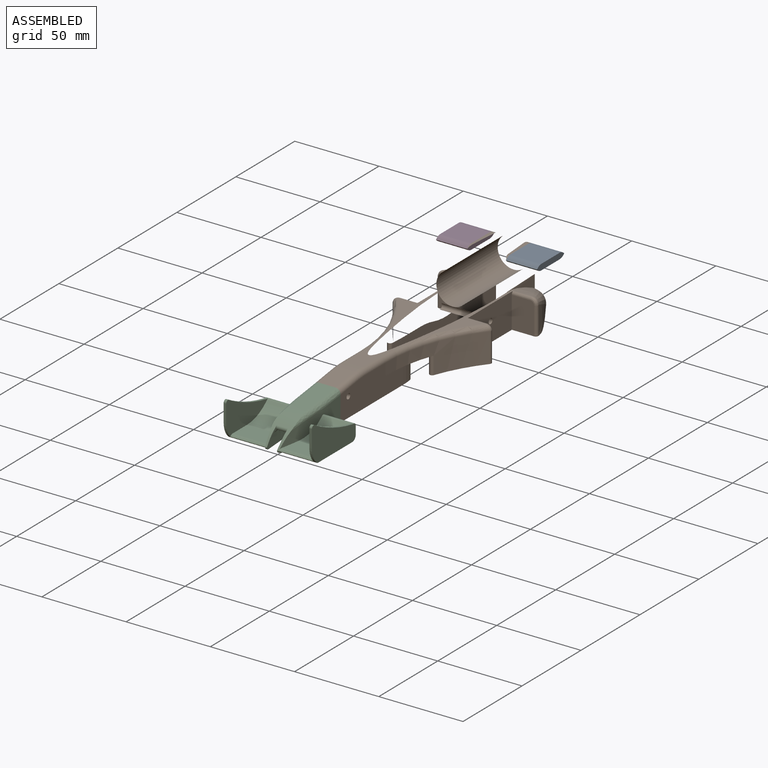
[diagram: assembled view]
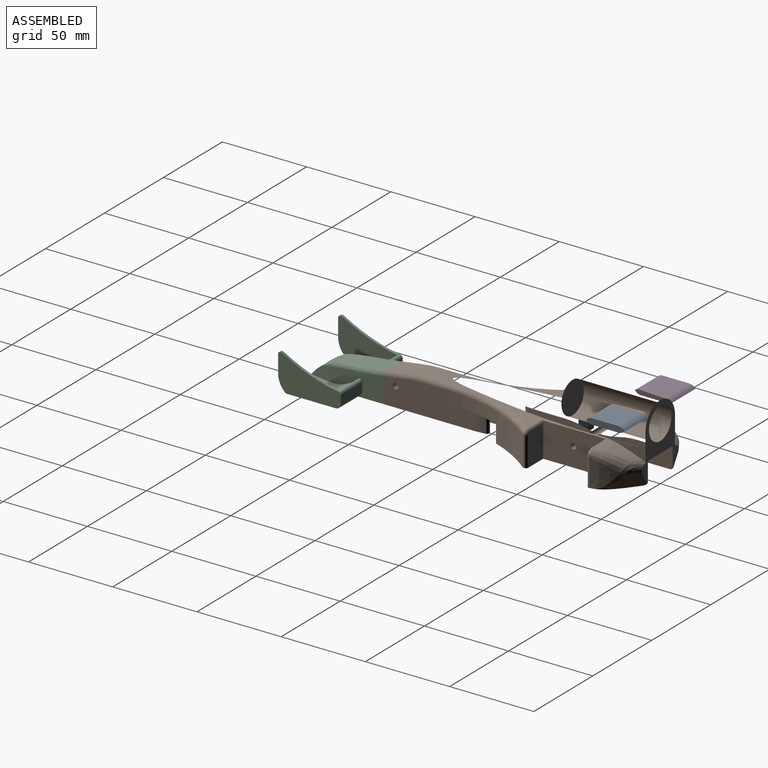
[diagram: assembled view, second angle]
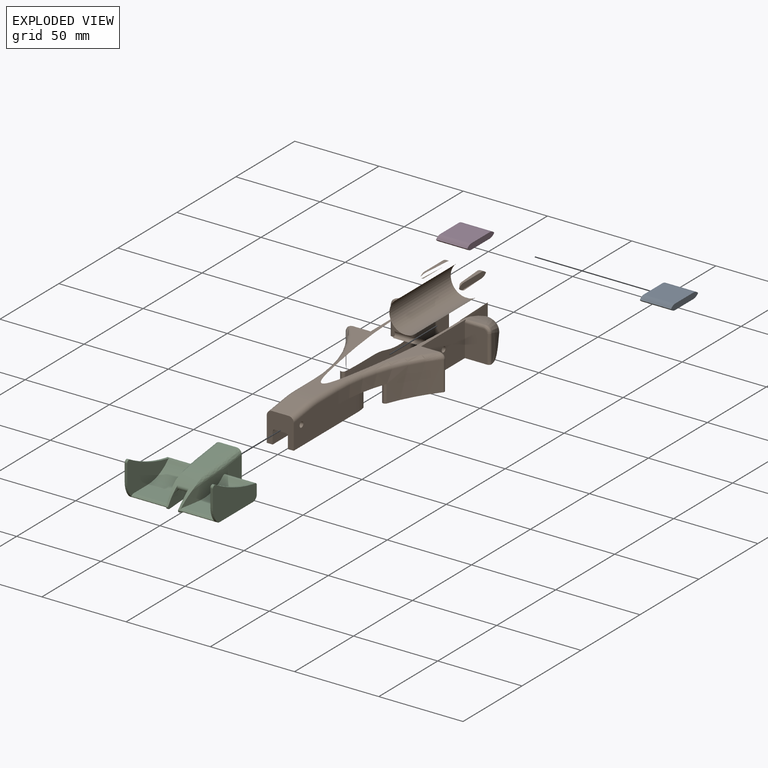
[diagram: exploded view]
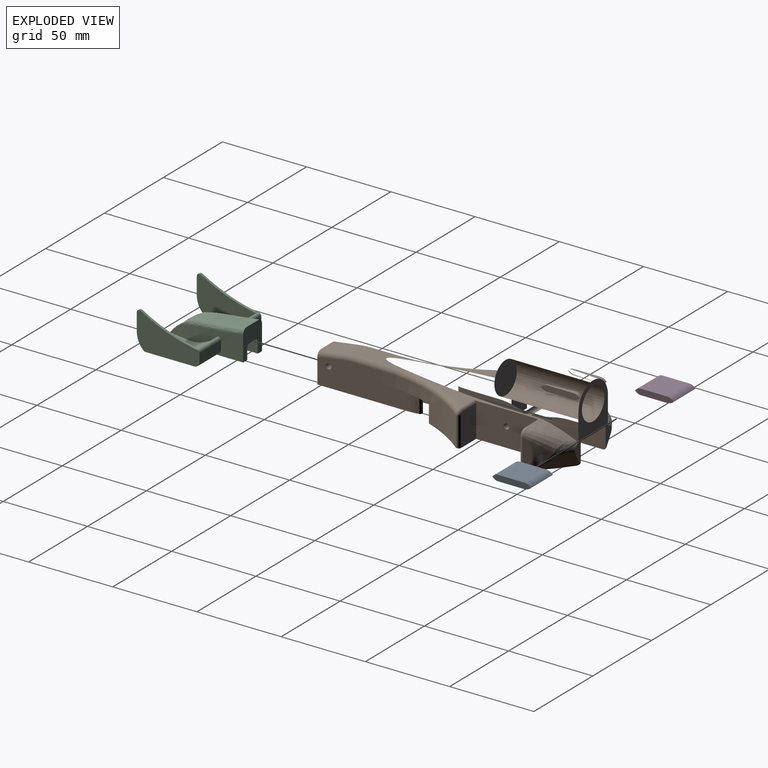
[diagram: exploded view, second angle]
ASSEMBLY  parts=4 mates=3
PART A: 12 faces, bbox 18.5x23x3.5 mm
  f0: plane 23x3.5mm, normal (-1,0,0), area 72.4mm2, adj f1,f2,f3,f4,f5,f6,f7,f9
  f1: plane 18.51x15.55mm, normal (0,0,1), area 287.8mm2, adj f0,f5,f6,f8
  f2: plane 18.51x0.18mm, normal (0,0.71,-0.71), area 4.6mm2, adj f0,f3,f4,f8
  f3: plane 18.51x0.18mm, normal (0,0.71,0.71), area 4.6mm2, adj f0,f2,f5,f8
  f4: cylinder r=5.37mm len=18.51mm, axis (1,0,0), area 78.1mm2, adj f0,f2,f8,f9
  f5: cylinder r=5.37mm len=18.51mm, axis (1,0,0), area 78.1mm2, adj f0,f1,f3,f8
  f6: cylinder r=4.16mm len=18.51mm, axis (1,0,0), area 60.5mm2, adj f0,f1,f7,f8
  f7: plane 18.51x0.53mm, normal (0,-0.71,0.71), area 13.9mm2, adj f0,f6,f8,f11
  f8: plane 23x3.5mm, normal (1,0,0), area 72.4mm2, adj f1,f2,f3,f4,f5,f6,f7,f9
  f9: plane 18.51x15.55mm, normal (0,0,-1), area 287.8mm2, adj f0,f4,f8,f10
  f10: cylinder r=4.16mm len=18.51mm, axis (1,0,0), area 60.5mm2, adj f0,f8,f9,f11
  f11: plane 18.51x0.53mm, normal (0,-0.71,-0.71), area 13.9mm2, adj f0,f7,f8,f10
PART B: 143 faces, bbox 63.7x165.4x54 mm
  f0: plane 15.65x0.98mm, normal (0,0,1), area 7.3mm2, adj f4,f137,f142
  f1: plane 0.25x0.15mm, normal (0,1,0), area 0mm2, adj f4,f136,f140
  f2: plane 15.65x0.98mm, normal (0,0,1), area 7.3mm2, adj f4,f136,f139
  f3: plane 15.55x2.44mm, normal (0,0,1), area 27.8mm2, adj f4,f5,f9,f136
  f4: bspline ~135x31.11mm, area 5379.5mm2, adj f0,f1,f2,f3,f5,f6,f7,f8
  f5: cylinder r=5.37mm len=3.8mm, axis (-1,0,0), area 8.1mm2, adj f3,f4,f6,f136
  f6: plane 1.43x0.18mm, normal (0,0.71,0.71), area 0.3mm2, adj f4,f5,f7,f136
  f7: plane 1.31x0.18mm, normal (0,0.71,-0.71), area 0.3mm2, adj f4,f6,f8,f136
  f8: cylinder r=5.37mm len=3.8mm, axis (-1,0,0), area 2.5mm2, adj f4,f7,f136
  f9: cylinder r=4.16mm len=2.94mm, axis (-1,0,0), area 2.8mm2, adj f3,f4,f10,f136
  f10: plane 0.3x0.3mm, normal (0,-0.71,0.71), area 0mm2, adj f4,f9,f136
  f11: plane 59.56x10.65mm, normal (-1,0,0), area 507mm2, adj f21,f23,f111,f113,f114,f118,f135
  f12: plane 60.92x3.5mm, normal (0,0,-1), area 210.5mm2, adj f17,f22,f109,f110,f135
  f13: bspline ~10x0.91mm, area 9.2mm2, adj f19,f20,f51,f135
  f14: cylinder r=41.85mm len=21.2mm, axis (-1,0,0), area 127mm2, adj f15,f16,f37,f59,f60,f135
  f15: torus R=43.85mm, axis (1,0,0), area 20.2mm2, adj f14,f23,f60,f135
  f16: torus R=43.85mm, axis (-1,0,0), area 20.2mm2, adj f14,f24,f37,f135
  f17: plane 53.42x17.5mm, normal (-1,0,0), area 795.2mm2, adj f12,f20,f36,f38,f40,f73,f74,f75
  f18: plane 53.42x17.5mm, normal (1,0,0), area 795.2mm2, adj f19,f21,f36,f39,f40,f69,f70,f71
  f19: bspline ~3.16x3mm, area 5.3mm2, adj f13,f18,f71,f135
  f20: bspline ~3.16x3mm, area 5.3mm2, adj f13,f17,f75,f135
  f21: plane 60.92x3.5mm, normal (0,0,-1), area 210.5mm2, adj f11,f18,f111,f112,f135
  f22: plane 59.55x10.64mm, normal (1,0,0), area 507.1mm2, adj f12,f24,f109,f115,f116,f117,f135
  f23: torus R=42.98mm, axis (1,0,0), area 20.4mm2, adj f11,f15,f114,f135
  f24: torus R=42.98mm, axis (1,0,0), area 20.4mm2, adj f16,f22,f116,f135
  f25: plane 110.83x51.52mm, normal (0,0,1), area 616.1mm2, adj f4,f41,f43,f52,f54,f55,f68,f69
  f26: plane 89.03x21.28mm, normal (0,0,-1), area 751mm2, adj f27,f31,f32,f38,f41,f82,f88,f98
  f27: plane 75.6x13.33mm, normal (1,0,0), area 745mm2, adj f26,f33,f40,f58,f61,f62,f63,f105
  f28: plane 75.6x13.33mm, normal (-1,0,0), area 745mm2, adj f29,f33,f40,f53,f58,f61,f62,f63
  f29: plane 87.91x20.17mm, normal (0,0,-1), area 751mm2, adj f28,f30,f39,f43,f77,f83,f85,f100
  f30: bspline ~18.38x16.51mm, area 135.8mm2, adj f29,f33,f123,f127,f128,f129,f130
  f31: bspline ~18.38x16.51mm, area 133.2mm2, adj f26,f33,f122,f131,f132,f133
  f32: plane 18.87x13.21mm, normal (0,-1,0), area 247.2mm2, adj f26,f41,f80,f81,f121
  f33: plane 40.05x31.43mm, normal (0,1,0), area 435.5mm2, adj f4,f27,f28,f30,f31,f49,f50,f64
  f34: extruded ~16.96x2.19mm, area 39.9mm2, adj f37,f40,f115,f117
  f35: extruded ~16.96x2.19mm, area 39.9mm2, adj f40,f60,f113,f118
  f36: cylinder r=1.6mm len=16mm, axis (-1,0,0), area 160.8mm2, adj f17,f18
  f37: bspline ~3.98x2.83mm, area 3.9mm2, adj f14,f16,f34,f59,f116
  f38: cylinder r=92.82mm len=58.55mm, axis (0,0,1), area 759.9mm2, adj f17,f26,f40,f72,f88,f104
  f39: cylinder r=92.82mm len=58.55mm, axis (0,0,1), area 759.9mm2, adj f18,f29,f40,f68,f85,f108
  f40: plane 72.64x27.77mm, normal (0,0,-1), area 992.5mm2, adj f17,f18,f27,f28,f34,f35,f38,f39
  f41: plane 37.51x20.5mm, normal (-1,0,0), area 727.9mm2, adj f25,f26,f32,f42,f54,f80,f82,f84
  f42: plane 3.21x1.55mm, normal (-1,0,0), area 3mm2, adj f41,f54,f80
  f43: plane 37.51x20.5mm, normal (1,0,0), area 727.9mm2, adj f25,f29,f55,f76,f77,f78,f83,f84
  f44: bspline ~25x15mm, area 90.4mm2, adj f48,f54,f80
  f45: bspline ~25x20mm, area 145.7mm2, adj f47,f79,f100,f130
  f46: bspline ~25x15mm, area 90.3mm2, adj f47,f55,f78
  f47: bspline ~26.4x18.09mm, area 156.5mm2, adj f45,f46,f56,f78,f129
  f48: bspline ~19.24x14.69mm, area 156.5mm2, adj f44,f57,f80,f119,f132
  f49: extruded ~25x7.89mm, area 9.1mm2, adj f33,f55,f64,f127
  f50: extruded ~25x7.89mm, area 9mm2, adj f33,f54,f65,f131
  f51: plane 12.97x10mm, normal (0,-0.14,0.99), area 131mm2, adj f13,f52,f71,f75
  f52: cylinder r=60mm len=10mm, axis (1,0,0), area 85.1mm2, adj f25,f51,f70,f74
  f53: cylinder r=30mm len=10mm, axis (0,0,-1), area 0.4mm2, adj f28,f40,f102,f107
  f54: extruded ~23.09x6.64mm, area 43.4mm2, adj f25,f41,f42,f44,f50,f57,f131
  f55: extruded ~23.05x6.62mm, area 43.5mm2, adj f25,f43,f46,f49,f56,f76,f127
  f56: bspline ~9.3x9.24mm, area 0.2mm2, adj f47,f55,f128
  f57: bspline ~9.3x9.24mm, area 0.2mm2, adj f48,f54,f131
  f58: plane 21x9.46mm, normal (0,0,-1), area 198.7mm2, adj f27,f28,f62,f125
  f59: cylinder r=2mm len=4.02mm, axis (-1,0,0), area 2.9mm2, adj f14,f37,f40,f60
  f60: bspline ~2.99x2.8mm, area 3.9mm2, adj f14,f15,f35,f59,f114
  f61: cylinder r=41.85mm len=21.53mm, axis (-1,0,0), area 457.4mm2, adj f27,f28,f62,f63
  f62: cylinder r=40mm len=21mm, axis (-1,0,0), area 218.6mm2, adj f27,f28,f58,f61
  f63: cylinder r=40mm len=21mm, axis (-1,0,0), area 218.6mm2, adj f27,f28,f40,f61
  f64: extruded ~25x7.66mm, area 62.8mm2, adj f4,f33,f49
  f65: extruded ~25x7.66mm, area 62.8mm2, adj f4,f33,f50,f134
  f66: cylinder r=9.5mm len=52mm, axis (0,1,0), area 3103.9mm2, adj f33,f67
  f67: plane 19x19mm, normal (0,1,0), area 283.5mm2, adj f66
  f68: torus R=95.82mm, axis (0,0,1), area 299.3mm2, adj f25,f39,f69,f86
  f69: cylinder r=3mm len=15.74mm, axis (0,1,0), area 74.2mm2, adj f18,f25,f68,f70
  f70: torus R=57mm, axis (-1,0,0), area 39.4mm2, adj f18,f52,f69,f71
  f71: cylinder r=3mm len=13.4mm, axis (0,0.99,0.14), area 61.8mm2, adj f18,f19,f51,f70
  f72: torus R=95.82mm, axis (0,0,1), area 299.3mm2, adj f25,f38,f73,f89
  f73: cylinder r=3mm len=15.74mm, axis (0,-1,0), area 74.2mm2, adj f17,f25,f72,f74
  f74: torus R=57mm, axis (-1,0,0), area 39.4mm2, adj f17,f52,f73,f75
  f75: cylinder r=3mm len=13.4mm, axis (0,-0.99,-0.14), area 61.7mm2, adj f17,f20,f51,f74
  f76: plane 3.22x1.56mm, normal (1,0,0), area 3mm2, adj f43,f55,f78
  f77: plane 18.87x13.21mm, normal (0,-1,0), area 247.2mm2, adj f29,f43,f78,f79,f101
  f78: bspline ~18.2x4.17mm, area 38.8mm2, adj f43,f46,f47,f76,f77,f79
  f79: bspline ~26.23x1.77mm, area 41.7mm2, adj f45,f77,f78,f101
  f80: bspline ~19.2x4.15mm, area 39.3mm2, adj f32,f41,f42,f44,f48,f81
  f81: bspline ~27.22x1.77mm, area 41.7mm2, adj f32,f80,f98,f99,f119,f121
  f82: plane 19x12.64mm, normal (0,1,0), area 239.5mm2, adj f26,f41,f88,f89,f90
  f83: plane 19x12.64mm, normal (0,1,0), area 239.5mm2, adj f29,f43,f85,f86,f87
  f84: cylinder r=1.6mm len=30mm, axis (1,0,0), area 301.6mm2, adj f41,f43
  f85: cylinder r=1.5mm len=17.5mm, axis (0,0,1), area 59.2mm2, adj f29,f39,f83,f86
  f86: bspline ~5.26x3.92mm, area 13.1mm2, adj f68,f83,f85,f87
  f87: cylinder r=1.5mm len=10.71mm, axis (1,0,0), area 25.2mm2, adj f25,f43,f83,f86
  f88: cylinder r=1.5mm len=17.5mm, axis (0,0,1), area 59.2mm2, adj f26,f38,f82,f89
  f89: bspline ~5.26x3.92mm, area 13.1mm2, adj f72,f82,f88,f90
  f90: cylinder r=1.5mm len=10.71mm, axis (1,0,0), area 25.2mm2, adj f25,f41,f82,f89
  f91: plane 1.31x0.18mm, normal (0,0.71,-0.71), area 0.3mm2, adj f4,f92,f93,f137
  f92: plane 1.43x0.18mm, normal (0,0.71,0.71), area 0.3mm2, adj f4,f91,f95,f137
  f93: cylinder r=5.37mm len=3.8mm, axis (1,0,0), area 2.5mm2, adj f4,f91,f137
  f94: plane 15.55x2.44mm, normal (0,0,1), area 27.8mm2, adj f4,f95,f96,f137
  f95: cylinder r=5.37mm len=3.8mm, axis (1,0,0), area 8.1mm2, adj f4,f92,f94,f137
  f96: cylinder r=4.16mm len=2.94mm, axis (1,0,0), area 2.8mm2, adj f4,f94,f97,f137
  f97: plane 0.3x0.3mm, normal (0,-0.71,0.71), area 0mm2, adj f4,f96,f137
  f98: cylinder r=1.5mm len=0.5mm, axis (0,0,1), area 0.2mm2, adj f26,f81,f99,f121
  f99: extruded ~0.5x0.04mm, area 0mm2, adj f26,f81,f98,f120
  f100: extruded ~4.69x1.19mm, area 2.1mm2, adj f29,f45,f101,f130
  f101: extruded ~1.74x1.5mm, area 1.3mm2, adj f29,f77,f79,f100
  f102: extruded ~0.5x0.04mm, area 0mm2, adj f28,f29,f53,f107
  f103: cylinder r=136.18mm len=11.45mm, axis (0,0,-1), area 120.4mm2, adj f26,f40,f104,f105,f106
  f104: cylinder r=1.5mm len=10.5mm, axis (0,0,-1), area 42.5mm2, adj f26,f38,f40,f103
  f105: extruded ~0.5x0.04mm, area 0mm2, adj f26,f27,f103,f106
  f106: cylinder r=30mm len=10mm, axis (0,0,-1), area 0.4mm2, adj f27,f40,f103,f105
  f107: cylinder r=136.18mm len=11.45mm, axis (0,0,-1), area 120.4mm2, adj f29,f40,f53,f102,f108
  f108: cylinder r=1.5mm len=10.5mm, axis (0,0,-1), area 42.5mm2, adj f29,f39,f40,f107
  f109: cylinder r=1.5mm len=10.5mm, axis (0,0,-1), area 46.9mm2, adj f12,f22,f40,f110
  f110: cylinder r=37.75mm len=10.5mm, axis (0,0,-1), area 65.9mm2, adj f12,f17,f40,f109
  f111: cylinder r=1.5mm len=10.5mm, axis (0,0,-1), area 46.9mm2, adj f11,f21,f40,f112
  f112: cylinder r=37.75mm len=10.5mm, axis (0,0,-1), area 65.9mm2, adj f18,f21,f40,f111
  f113: cylinder r=1mm len=16.96mm, axis (0,-1,0), area 13.5mm2, adj f11,f35,f114,f118
  f114: bspline ~1.97x1.13mm, area 1.8mm2, adj f11,f23,f60,f113
  f115: cylinder r=1mm len=16.96mm, axis (0,-1,0), area 13.5mm2, adj f22,f34,f116,f117
  f116: bspline ~1.97x1.13mm, area 1.8mm2, adj f22,f24,f37,f115
  f117: bspline ~21.32x2.49mm, area 42.7mm2, adj f22,f34,f40,f115
  f118: bspline ~21.32x2.49mm, area 42.7mm2, adj f11,f35,f40,f113
  f119: bspline ~25x20mm, area 145.7mm2, adj f48,f81,f120,f133
  f120: extruded ~4.69x1.19mm, area 2.1mm2, adj f26,f99,f119,f133
  f121: extruded ~1.48x1.26mm, area 1.1mm2, adj f26,f32,f81,f98
  f122: cylinder r=1.5mm len=2.04mm, axis (-1,0,0), area 2.5mm2, adj f26,f27,f31,f33
  f123: cylinder r=1.5mm len=2.04mm, axis (-1,0,0), area 2.5mm2, adj f28,f29,f30,f33
  f124: plane 21x7.25mm, normal (0,0.2,-0.98), area 155.4mm2, adj f27,f28,f125,f126
  f125: cylinder r=20mm len=21mm, axis (1,0,0), area 82.9mm2, adj f27,f28,f58,f124
  f126: cylinder r=1mm len=21mm, axis (-1,0,0), area 28.8mm2, adj f27,f28,f33,f124
  f127: bspline ~12.71x9.9mm, area 20.2mm2, adj f30,f33,f49,f55,f128
  f128: bspline ~6.31x4.05mm, area 6.6mm2, adj f30,f56,f127,f129
  f129: bspline ~9.22x7.11mm, area 39.1mm2, adj f30,f47,f128,f130
  f130: bspline ~11.98x9.94mm, area 24.5mm2, adj f29,f30,f45,f100,f129
  f131: bspline ~7.15x6.59mm, area 26.8mm2, adj f31,f33,f50,f54,f57,f132
  f132: bspline ~8.55x6.7mm, area 39.1mm2, adj f31,f48,f131,f133
  f133: bspline ~11.98x9.94mm, area 24.5mm2, adj f26,f31,f119,f120,f132
  f134: bspline ~135x15.55mm, area 1.6mm2, adj f4,f25,f65
  f135: plane 18.11x16.19mm, normal (0,-1,0), area 209mm2, adj f11,f12,f13,f14,f15,f16,f17,f18
  f136: plane 23x3.5mm, normal (-1,0,0), area 72.4mm2, adj f1,f2,f3,f4,f5,f6,f7,f8
  f137: plane 23x3.5mm, normal (1,0,0), area 72.4mm2, adj f0,f4,f91,f92,f93,f94,f95,f96
  f138: plane 0.25x0.15mm, normal (0,1,0), area 0mm2, adj f4,f137,f141
  f139: cylinder r=4.16mm len=2.94mm, axis (1,0,0), area 2.1mm2, adj f2,f4,f136,f140
  f140: plane 0.53x0.53mm, normal (0,0.71,0.71), area 0.2mm2, adj f1,f4,f136,f139
  f141: plane 0.53x0.53mm, normal (0,0.71,0.71), area 0.2mm2, adj f4,f137,f138,f142
  f142: cylinder r=4.16mm len=2.94mm, axis (-1,0,0), area 2.1mm2, adj f0,f4,f137,f141
PART C: 82 faces, bbox 52.6x57.9x24.2 mm
  f0: cylinder r=98mm len=31.84mm, axis (-1,0,0), area 51.1mm2, adj f5,f49,f59,f77
  f1: cylinder r=98mm len=31.84mm, axis (1,0,0), area 51.1mm2, adj f2,f3,f50,f78
  f2: plane 37.21x21.5mm, normal (1,0,0), area 519.4mm2, adj f1,f18,f34,f35,f50,f51,f52,f53
  f3: plane 35.82x20.51mm, normal (-1,0,0), area 399.5mm2, adj f1,f14,f15,f16,f50,f51,f52,f53
  f4: cylinder r=166.39mm len=36.26mm, axis (0,0,1), area 262.1mm2, adj f14,f15,f16,f18,f19,f27,f29,f30
  f5: plane 35.82x20.51mm, normal (1,0,0), area 399.6mm2, adj f0,f11,f12,f13,f55,f56,f57,f58
  f6: cylinder r=166.39mm len=36.26mm, axis (0,0,1), area 262.1mm2, adj f10,f11,f12,f13,f17,f19,f26,f32
  f7: plane 24.57x8.95mm, normal (-1,0,0), area 202.3mm2, adj f47,f61,f62,f63,f81
  f8: bspline ~40x10mm, area 550.7mm2, adj f9,f19,f24,f25,f38,f39,f43,f44
  f9: bspline ~3.98x2.9mm, area 3.3mm2, adj f8,f21,f23,f25,f66
  f10: plane 45.45x4.93mm, normal (0,0,-1), area 130.1mm2, adj f6,f26,f48,f60,f64,f70,f81
  f11: plane 20.69x0.35mm, normal (0,-0.71,0.71), area 10.3mm2, adj f5,f6,f12,f37
  f12: cylinder r=2.21mm len=20.61mm, axis (-1,0,0), area 35.4mm2, adj f5,f6,f11,f13
  f13: plane 20.28x12.17mm, normal (0,0,1), area 233mm2, adj f5,f6,f12,f72
  f14: plane 20.28x12.17mm, normal (0,0,1), area 233mm2, adj f3,f4,f15,f71
  f15: cylinder r=2.21mm len=20.61mm, axis (1,0,0), area 35.4mm2, adj f3,f4,f14,f16
  f16: plane 20.69x0.35mm, normal (0,-0.71,0.71), area 10.3mm2, adj f3,f4,f15,f34
  f17: plane 28.8x21.77mm, normal (0,0,-1), area 564.5mm2, adj f6,f36,f49,f80
  f18: plane 28.8x21.77mm, normal (0,0,-1), area 564.5mm2, adj f2,f4,f35,f79
  f19: cylinder r=32.34mm len=21.75mm, axis (-1,0,0), area 205.7mm2, adj f4,f6,f8,f20,f30,f33,f38,f39
  f20: bspline ~24.13x19.53mm, area 228.1mm2, adj f19,f28,f29,f31,f32,f81
  f21: cylinder r=41.85mm len=8mm, axis (-1,0,0), area 47.5mm2, adj f9,f22,f23,f24,f25,f81
  f22: torus R=43.85mm, axis (1,0,0), area 6.4mm2, adj f21,f24,f62,f81
  f23: torus R=43.85mm, axis (-1,0,0), area 6.2mm2, adj f9,f21,f65,f81
  f24: bspline ~3.98x2.89mm, area 3.5mm2, adj f8,f21,f22,f25,f63
  f25: cylinder r=2mm len=4.02mm, axis (-1,0,0), area 2.1mm2, adj f8,f9,f21,f24
  f26: plane 14.9x10.65mm, normal (-1,0,0), area 150.8mm2, adj f6,f10,f31,f81
  f27: plane 14.9x10.65mm, normal (1,0,0), area 150.8mm2, adj f4,f28,f47,f81
  f28: bspline ~42.2x7.68mm, area 51.3mm2, adj f20,f27,f29,f81
  f29: bspline ~38.04x6.94mm, area 58.7mm2, adj f4,f20,f28,f30
  f30: bspline ~20.28x6.19mm, area 40.5mm2, adj f4,f19,f29
  f31: bspline ~24.27x6.09mm, area 51.4mm2, adj f20,f26,f32,f81
  f32: bspline ~28.63x6.22mm, area 58.7mm2, adj f6,f20,f31,f33
  f33: bspline ~15.82x5.64mm, area 37.4mm2, adj f6,f19,f32
  f34: plane 22.19x0.35mm, normal (0,-0.71,-0.71), area 11.1mm2, adj f2,f4,f16,f35,f54
  f35: cylinder r=2.21mm len=22.11mm, axis (1,0,0), area 38mm2, adj f2,f4,f18,f34
  f36: cylinder r=2.21mm len=22.11mm, axis (-1,0,0), area 38mm2, adj f6,f17,f37,f49
  f37: plane 22.19x0.35mm, normal (0,-0.71,-0.71), area 11.1mm2, adj f6,f11,f36,f49,f55
  f38: plane 2.31x1.94mm, normal (0,-0.77,0.64), area 3.4mm2, adj f4,f8,f19,f69
  f39: plane 2.31x1.94mm, normal (0,-0.77,0.64), area 3.4mm2, adj f6,f8,f19,f70
  f40: cylinder r=1.5mm len=6.6mm, axis (1,0,0), area 15mm2, adj f19,f41,f42,f45
  f41: plane 4.32x3.38mm, normal (1,0,0), area 4.2mm2, adj f19,f40,f44,f45
  f42: plane 4.32x3.38mm, normal (-1,0,0), area 4.2mm2, adj f19,f40,f43,f45
  f43: bspline ~6.52x1.51mm, area 1.3mm2, adj f8,f19,f42,f45
  f44: bspline ~6.52x1.51mm, area 1.3mm2, adj f8,f19,f41,f45
  f45: bspline ~7.6x1.76mm, area 4.2mm2, adj f8,f40,f41,f42,f43,f44
  f46: extruded ~21.8x1.46mm, area 11mm2, adj f8,f47,f61,f68,f69
  f47: plane 45.5x4.96mm, normal (0,0,-1), area 130.1mm2, adj f4,f7,f27,f46,f61,f69,f81
  f48: extruded ~21.8x1.46mm, area 11mm2, adj f8,f10,f64,f67,f70
  f49: plane 37.21x21.5mm, normal (-1,0,0), area 519.4mm2, adj f0,f17,f36,f37,f55,f56,f57,f58
  f50: cylinder r=1.5mm len=2.25mm, axis (1,0,0), area 4.7mm2, adj f1,f2,f3,f51
  f51: plane 10.5x1.5mm, normal (0,-1,0), area 15.8mm2, adj f2,f3,f50,f52
  f52: cylinder r=11.54mm len=4.76mm, axis (1,0,0), area 7.4mm2, adj f2,f3,f51,f53
  f53: plane 1.5x0.49mm, normal (0,-0.91,-0.41), area 0.8mm2, adj f2,f3,f52,f54
  f54: cylinder r=11.05mm len=3.25mm, axis (1,0,0), area 6mm2, adj f2,f3,f34,f53
  f55: cylinder r=11.05mm len=3.25mm, axis (-1,0,0), area 6mm2, adj f5,f37,f49,f56
  f56: plane 1.5x0.49mm, normal (0,-0.91,-0.41), area 0.8mm2, adj f5,f49,f55,f57
  f57: cylinder r=11.54mm len=4.76mm, axis (-1,0,0), area 7.4mm2, adj f5,f49,f56,f58
  f58: plane 10.5x1.5mm, normal (0,-1,0), area 15.8mm2, adj f5,f49,f57,f59
  f59: cylinder r=1.5mm len=2.25mm, axis (-1,0,0), area 4.7mm2, adj f0,f5,f49,f58
  f60: plane 24.57x8.94mm, normal (1,0,0), area 202.4mm2, adj f10,f64,f65,f66,f81
  f61: bspline ~16.82x9.65mm, area 11.2mm2, adj f7,f8,f46,f47,f63
  f62: torus R=42.98mm, axis (1,0,0), area 6.6mm2, adj f7,f22,f63,f81
  f63: bspline ~2.59x1.31mm, area 1.7mm2, adj f7,f8,f24,f61,f62
  f64: bspline ~17.16x11.66mm, area 11.2mm2, adj f8,f10,f48,f60,f66
  f65: torus R=42.98mm, axis (1,0,0), area 6.6mm2, adj f23,f60,f66,f81
  f66: bspline ~2.65x1.31mm, area 1.7mm2, adj f8,f9,f60,f64,f65
  f67: extruded ~0.12x0.12mm, area 0mm2, adj f8,f48,f70
  f68: extruded ~0.12x0.12mm, area 0mm2, adj f8,f46,f69
  f69: cylinder r=1.5mm len=1.5mm, axis (1,0,0), area 2.6mm2, adj f4,f8,f38,f46,f47,f68
  f70: cylinder r=1.5mm len=1.5mm, axis (1,0,0), area 2.6mm2, adj f6,f8,f10,f39,f48,f67
  f71: cylinder r=24.89mm len=18.17mm, axis (1,0,0), area 328mm2, adj f3,f4,f14,f75
  f72: cylinder r=24.89mm len=18.17mm, axis (-1,0,0), area 328mm2, adj f5,f6,f13,f76
  f73: plane 18.21x4.87mm, normal (0,1,0), area 88.7mm2, adj f6,f49,f76,f80
  f74: plane 18.21x4.87mm, normal (0,1,0), area 88.7mm2, adj f2,f4,f75,f79
  f75: cylinder r=1.5mm len=18.27mm, axis (1,0,0), area 62.1mm2, adj f2,f3,f4,f71,f74,f78
  f76: cylinder r=1.5mm len=18.27mm, axis (-1,0,0), area 62.1mm2, adj f5,f6,f49,f72,f73,f77
  f77: cylinder r=15mm len=1.72mm, axis (1,0,0), area 2.6mm2, adj f0,f5,f49,f76
  f78: cylinder r=15mm len=1.72mm, axis (-1,0,0), area 2.6mm2, adj f1,f2,f3,f75
  f79: cylinder r=3mm len=18.28mm, axis (1,0,0), area 86mm2, adj f2,f4,f18,f74
  f80: cylinder r=3mm len=18.28mm, axis (1,0,0), area 86mm2, adj f6,f17,f49,f73
  f81: plane 18.11x16.19mm, normal (0,1,0), area 209mm2, adj f7,f10,f20,f21,f22,f23,f26,f27
PART D: 12 faces, bbox 18.5x23x3.5 mm
  f0: plane 23x3.5mm, normal (1,0,0), area 72.4mm2, adj f1,f2,f4,f5,f6,f7,f8,f9
  f1: cylinder r=4.16mm len=18.51mm, axis (-1,0,0), area 60.5mm2, adj f0,f2,f3,f11
  f2: plane 18.51x0.53mm, normal (0,-0.71,-0.71), area 13.9mm2, adj f0,f1,f3,f8
  f3: plane 23x3.5mm, normal (-1,0,0), area 72.4mm2, adj f1,f2,f4,f5,f6,f7,f8,f9
  f4: cylinder r=5.37mm len=18.51mm, axis (-1,0,0), area 78.1mm2, adj f0,f3,f5,f11
  f5: plane 18.51x0.18mm, normal (0,0.71,-0.71), area 4.6mm2, adj f0,f3,f4,f6
  f6: plane 18.51x0.18mm, normal (0,0.71,0.71), area 4.6mm2, adj f0,f3,f5,f7
  f7: cylinder r=5.37mm len=18.51mm, axis (-1,0,0), area 78.1mm2, adj f0,f3,f6,f10
  f8: plane 18.51x0.53mm, normal (0,-0.71,0.71), area 13.9mm2, adj f0,f2,f3,f9
  f9: cylinder r=4.16mm len=18.51mm, axis (-1,0,0), area 60.5mm2, adj f0,f3,f8,f10
  f10: plane 18.51x15.55mm, normal (0,0,1), area 287.8mm2, adj f0,f3,f7,f9
  f11: plane 18.51x15.55mm, normal (0,0,-1), area 287.8mm2, adj f0,f1,f3,f4
PLACE A at identity
PLACE B at identity
PLACE C at identity
PLACE D at identity
MATE fastened A.f0 <-> B.f137  axis (-1,0,0) through (11.5,-11.57,7.25)mm
MATE fastened D.f0 <-> B.f136  axis (1,0,0) through (-11.5,-11.57,7.25)mm
MATE fastened C.f81 <-> B.f135  axis (0,1,0) through (0,-158.1,-18.48)mm
